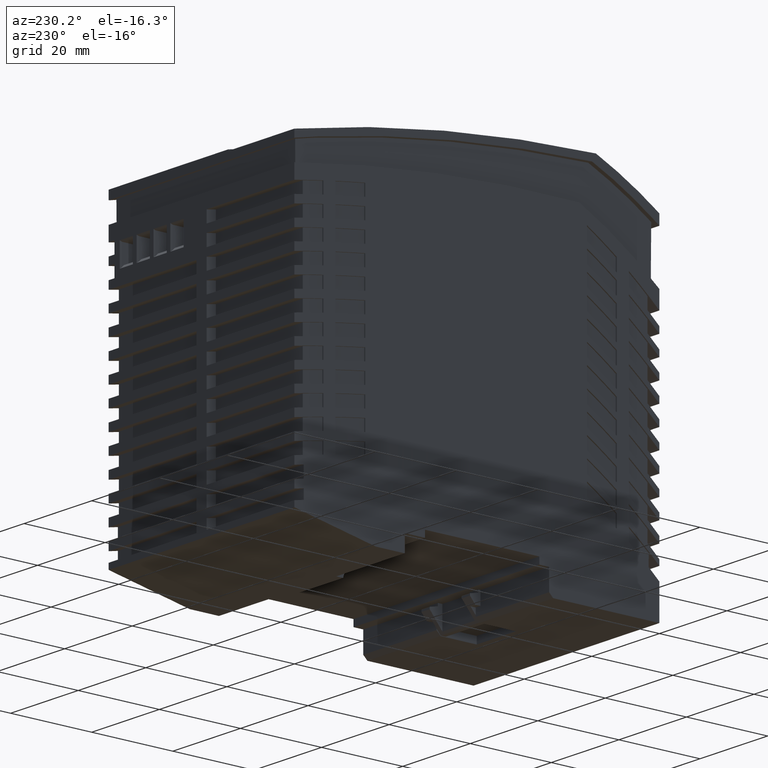
[diagram: clean part render]
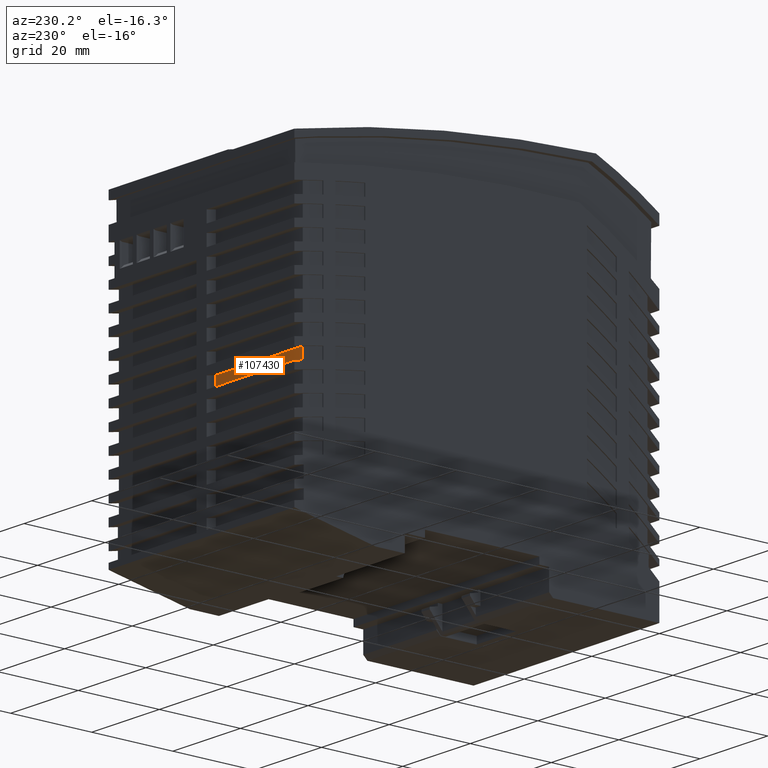
[diagram: same view with one face highlighted and labeled with its STEP entity id]
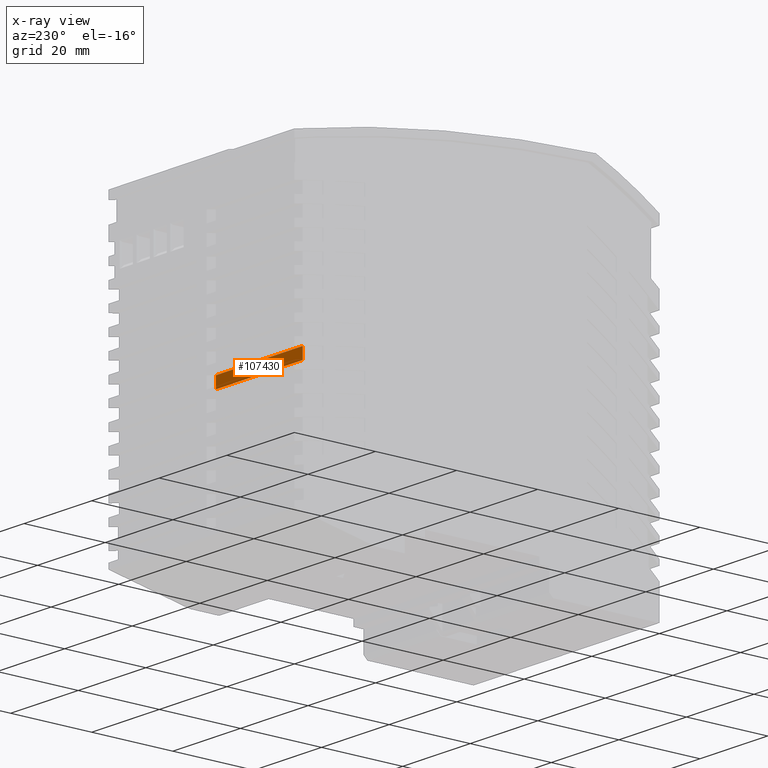
[diagram: x-ray of the same camera — body ghosted, the highlighted face saturated]
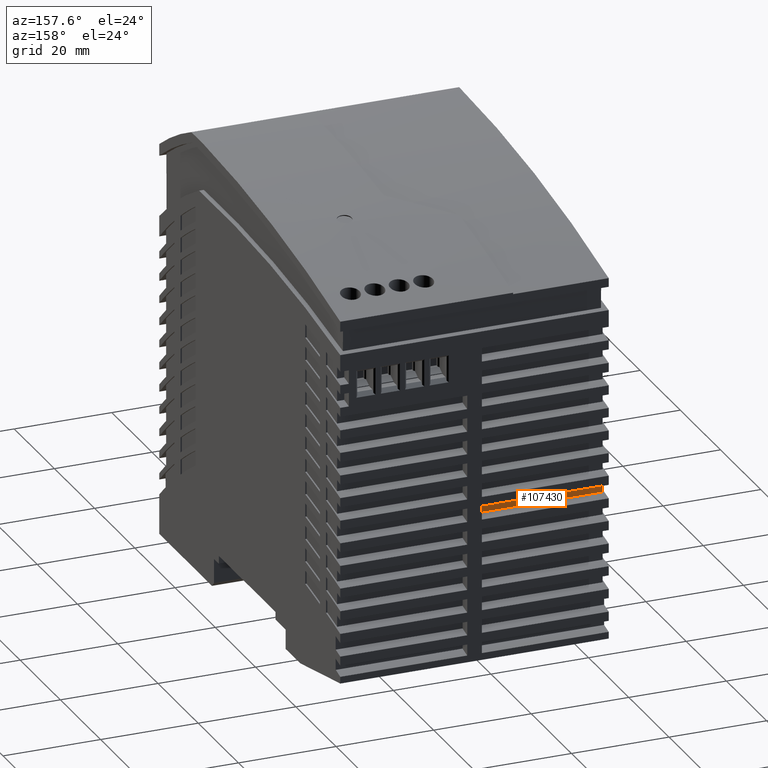
[diagram: same view with one face highlighted and labeled with its STEP entity id]
A machine part, auxiliary view. The second image highlights one B-rep face of the part: STEP entity #107430.
The next image is the same camera in x-ray: the body ghosted, the highlighted face saturated — about 0% of this face is hidden behind the body in this view.
A second angle (auxiliary view) of the same face is appended — the face is thin or edge-on in the first view.
In plain terms, the highlighted planar face has unit normal (0, -1, 0).
Its self-contained STEP definition (entity closure, byte-faithful):
#89970=CARTESIAN_POINT('',(42.6984763926291,0.,-53.7));
#89980=DIRECTION('',(0.,1.,0.));
#89990=VECTOR('',#89980,1.);
#90000=LINE('',#89970,#89990);
#90010=CARTESIAN_POINT('',(42.6984763926293,35.5639988199047,-53.7));
#90020=VERTEX_POINT('',#90010);
#90030=CARTESIAN_POINT('',(42.6984763926275,38.3595050889334,-53.7));
#90040=VERTEX_POINT('',#90030);
#90050=EDGE_CURVE('',#90020,#90040,#90000,.T.);
#90760=CARTESIAN_POINT('',(42.6984763926291,38.3595050889331,-28.));
#90770=DIRECTION('',(0.,0.,-1.));
#90780=VECTOR('',#90770,1.);
#90790=LINE('',#90760,#90780);
#90800=CARTESIAN_POINT('',(42.6984763926276,38.3595050889334,-28.));
#90810=VERTEX_POINT('',#90800);
#90820=EDGE_CURVE('',#90810,#90040,#90790,.T.);
#91640=CARTESIAN_POINT('',(42.6984763926293,35.5639988199047,-28.));
#91650=VERTEX_POINT('',#91640);
#91680=CARTESIAN_POINT('',(42.6984763926292,35.5639988199049,-28.));
#91690=DIRECTION('',(0.,0.,-1.));
#91700=VECTOR('',#91690,1.);
#91710=LINE('',#91680,#91700);
#91720=EDGE_CURVE('',#91650,#90020,#91710,.T.);
#105460=CARTESIAN_POINT('',(42.6984763926292,90.0290722762113,-28.));
#105470=DIRECTION('',(0.,-1.,0.));
#105480=VECTOR('',#105470,1.);
#105490=LINE('',#105460,#105480);
#105500=EDGE_CURVE('',#90810,#91650,#105490,.T.);
#107320=CARTESIAN_POINT('',(42.6984763926291,38.3595050889331,-28.));
#107330=DIRECTION('',(-1.,0.,0.));
#107340=DIRECTION('',(0.,-1.,0.));
#107350=AXIS2_PLACEMENT_3D('',#107320,#107330,#107340);
#107360=PLANE('',#107350);
#107370=ORIENTED_EDGE('',*,*,#91720,.T.);
#107380=ORIENTED_EDGE('',*,*,#105500,.T.);
#107390=ORIENTED_EDGE('',*,*,#90820,.F.);
#107400=ORIENTED_EDGE('',*,*,#90050,.T.);
#107410=EDGE_LOOP('',(#107400,#107390,#107380,#107370));
#107420=FACE_OUTER_BOUND('',#107410,.T.);
#107430=ADVANCED_FACE('',(#107420),#107360,.F.);